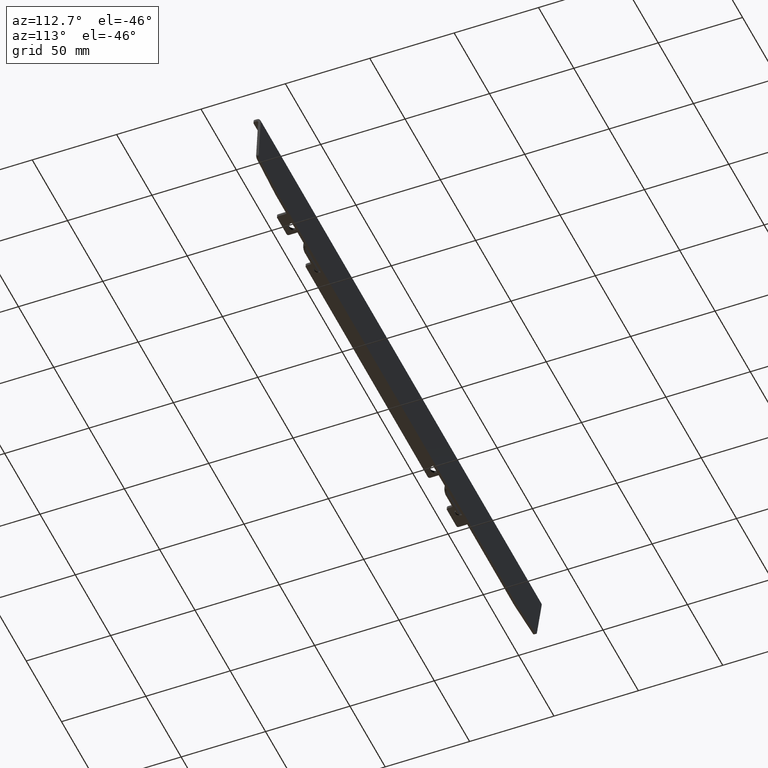
[diagram: clean part render]
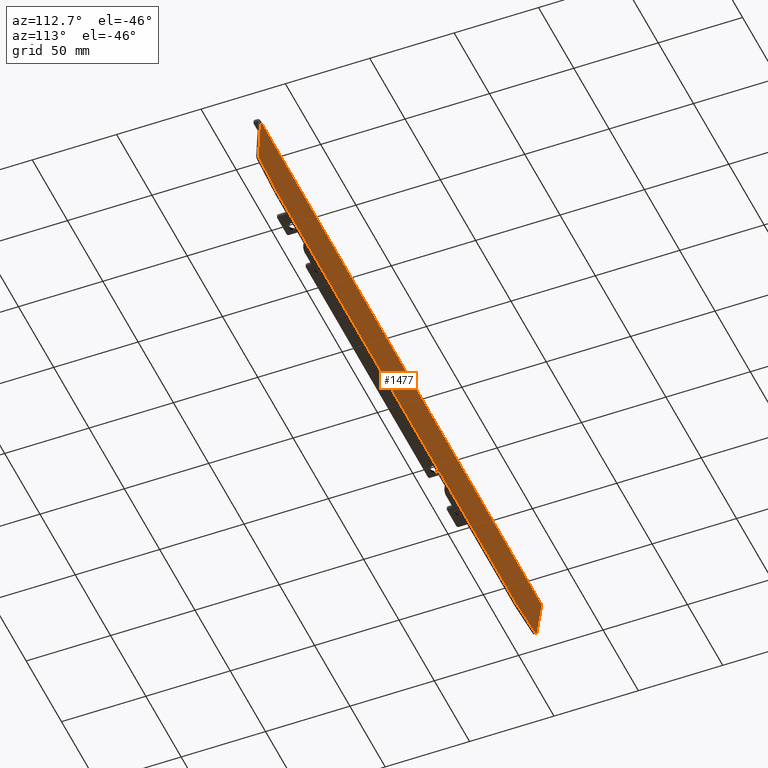
[diagram: same view with one face highlighted and labeled with its STEP entity id]
A machine part, auxiliary view. The second image highlights one B-rep face of the part: STEP entity #1477.
In plain terms, the highlighted planar face has unit normal (0, -0.9962, 0.0872).
Its self-contained STEP definition (entity closure, byte-faithful):
#20 = EDGE_CURVE ( 'NONE', #334, #1682, #816, .T. ) ;
#60 = CARTESIAN_POINT ( 'NONE',  ( 0.0000000000000000000, 14.19989399636805900, -1.146852625698959700 ) ) ;
#65 = CARTESIAN_POINT ( 'NONE',  ( 195.0776449257390900, 12.05539729358676500, -25.65856210158934300 ) ) ;
#81 = DIRECTION ( 'NONE',  ( -0.0000000000000000000, 0.9961946980917457700, -0.08715574274765484900 ) ) ;
#83 = CARTESIAN_POINT ( 'NONE',  ( 197.0700343219225500, 12.04020504659897400, -25.83221027925627300 ) ) ;
#151 = CARTESIAN_POINT ( 'NONE',  ( -3.792481612635670200, 10.42184392125012200, -44.33016258675002100 ) ) ;
#168 = VECTOR ( 'NONE', #2071, 1000.000000000000000 ) ;
#177 = EDGE_CURVE ( 'NONE', #843, #2389, #2250, .T. ) ;
#191 = ORIENTED_EDGE ( 'NONE', *, *, #2363, .T. ) ;
#226 = VERTEX_POINT ( 'NONE', #2243 ) ;
#262 = CARTESIAN_POINT ( 'NONE',  ( 169.0126781141830700, 11.85664828684728400, -27.93027364374357500 ) ) ;
#264 = EDGE_CURVE ( 'NONE', #2298, #671, #2130, .T. ) ;
#334 = VERTEX_POINT ( 'NONE', #1523 ) ;
#364 = ORIENTED_EDGE ( 'NONE', *, *, #1571, .T. ) ;
#372 = VECTOR ( 'NONE', #2027, 1000.000000000000200 ) ;
#409 = ORIENTED_EDGE ( 'NONE', *, *, #20, .T. ) ;
#416 = FACE_OUTER_BOUND ( 'NONE', #1247, .T. ) ;
#426 = DIRECTION ( 'NONE',  ( -0.0000000000000000000, 0.9961946980917457700, -0.08715574274765484900 ) ) ;
#430 = EDGE_CURVE ( 'NONE', #510, #1885, #1613, .T. ) ;
#481 = CARTESIAN_POINT ( 'NONE',  ( 169.1869895996784400, 11.68300010918036100, -29.91508139675577700 ) ) ;
#482 = DIRECTION ( 'NONE',  ( -1.000000000000000000, -0.0000000000000000000, -0.0000000000000000000 ) ) ;
#510 = VERTEX_POINT ( 'NONE', #1363 ) ;
#518 = VERTEX_POINT ( 'NONE', #1628 ) ;
#562 = DIRECTION ( 'NONE',  ( -0.0000000000000000000, 0.9961946980917457700, -0.08715574274765484900 ) ) ;
#602 = PLANE ( 'NONE',  #2025 ) ;
#640 = DIRECTION ( 'NONE',  ( 4.163336342344334500E-014, -0.08715574274765521000, -0.9961946980917457700 ) ) ;
#655 = DIRECTION ( 'NONE',  ( -0.0000000000000000000, 0.9961946980917457700, -0.08715574274765484900 ) ) ;
#656 = AXIS2_PLACEMENT_3D ( 'NONE', #65, #426, #2315 ) ;
#671 = VERTEX_POINT ( 'NONE', #1537 ) ;
#738 = CIRCLE ( 'NONE', #2007, 2.000000000000001300 ) ;
#809 = CARTESIAN_POINT ( 'NONE',  ( -169.0126781141831900, 11.68233680135197300, -29.92266303992706300 ) ) ;
#816 = LINE ( 'NONE', #1881, #168 ) ;
#817 = DIRECTION ( 'NONE',  ( 0.08715574274765833200, -0.08682408883346184900, -0.9924038765061041800 ) ) ;
#842 = CARTESIAN_POINT ( 'NONE',  ( -199.0999999999999900, 14.06244609240785000, -2.717889356869136900 ) ) ;
#843 = VERTEX_POINT ( 'NONE', #2017 ) ;
#863 = EDGE_CURVE ( 'NONE', #1682, #671, #1787, .T. ) ;
#954 = CARTESIAN_POINT ( 'NONE',  ( -195.2519564112343700, 11.88174911591983800, -27.64336985460155900 ) ) ;
#997 = ORIENTED_EDGE ( 'NONE', *, *, #1604, .F. ) ;
#1037 = ORIENTED_EDGE ( 'NONE', *, *, #430, .T. ) ;
#1050 = CIRCLE ( 'NONE', #656, 2.000000000000001300 ) ;
#1058 = LINE ( 'NONE', #842, #1560 ) ;
#1151 = DIRECTION ( 'NONE',  ( 0.0000000000000000000, -0.08715574274765486300, -0.9961946980917458800 ) ) ;
#1165 = ORIENTED_EDGE ( 'NONE', *, *, #177, .T. ) ;
#1209 = CARTESIAN_POINT ( 'NONE',  ( -195.0776449257390400, 12.05539729358676300, -25.65856210158935700 ) ) ;
#1247 = EDGE_LOOP ( 'NONE', ( #2060, #191, #997, #1489, #1165, #1698, #1037, #364, #409, #2213 ) ) ;
#1280 = CARTESIAN_POINT ( 'NONE',  ( 197.7245366855542800, 12.69221683113739400, -18.37968147996506500 ) ) ;
#1363 = CARTESIAN_POINT ( 'NONE',  ( 195.2519564112344000, 11.88174911591984200, -27.64336985460154800 ) ) ;
#1477 = ADVANCED_FACE ( 'NONE', ( #416 ), #602, .F. ) ;
#1489 = ORIENTED_EDGE ( 'NONE', *, *, #2420, .F. ) ;
#1523 = CARTESIAN_POINT ( 'NONE',  ( 169.0126781141830700, 11.68233680135197300, -29.92266303992706300 ) ) ;
#1537 = CARTESIAN_POINT ( 'NONE',  ( -169.1869895996785500, 11.68300010918035900, -29.91508139675577700 ) ) ;
#1550 = VECTOR ( 'NONE', #817, 1000.000000000000100 ) ;
#1560 = VECTOR ( 'NONE', #482, 1000.000000000000000 ) ;
#1571 = EDGE_CURVE ( 'NONE', #1885, #334, #1835, .T. ) ;
#1604 = EDGE_CURVE ( 'NONE', #226, #518, #1609, .T. ) ;
#1609 = LINE ( 'NONE', #2333, #1550 ) ;
#1613 = LINE ( 'NONE', #2114, #2176 ) ;
#1624 = AXIS2_PLACEMENT_3D ( 'NONE', #262, #81, #640 ) ;
#1628 = CARTESIAN_POINT ( 'NONE',  ( -197.0700343219225200, 12.04020504659897200, -25.83221027925629100 ) ) ;
#1645 = DIRECTION ( 'NONE',  ( 0.9961946980917455500, -0.007596123493895701000, -0.08682408883346542900 ) ) ;
#1664 = AXIS2_PLACEMENT_3D ( 'NONE', #2029, #562, #1828 ) ;
#1682 = VERTEX_POINT ( 'NONE', #809 ) ;
#1696 = EDGE_CURVE ( 'NONE', #2389, #510, #1050, .T. ) ;
#1698 = ORIENTED_EDGE ( 'NONE', *, *, #1696, .T. ) ;
#1724 = VECTOR ( 'NONE', #1645, 1000.000000000000100 ) ;
#1787 = CIRCLE ( 'NONE', #1664, 2.000000000000001300 ) ;
#1828 = DIRECTION ( 'NONE',  ( 0.0000000000000000000, -0.08715574274765521000, -0.9961946980917457700 ) ) ;
#1835 = CIRCLE ( 'NONE', #1624, 2.000000000000001300 ) ;
#1881 = CARTESIAN_POINT ( 'NONE',  ( 0.0000000000000000000, 11.68233680135197300, -29.92266303992706300 ) ) ;
#1885 = VERTEX_POINT ( 'NONE', #481 ) ;
#1904 = DIRECTION ( 'NONE',  ( 0.0000000000000000000, -0.9961946980917458800, 0.08715574274765486300 ) ) ;
#1962 = DIRECTION ( 'NONE',  ( 0.0000000000000000000, -0.08715574274765521000, -0.9961946980917457700 ) ) ;
#2007 = AXIS2_PLACEMENT_3D ( 'NONE', #1209, #655, #1962 ) ;
#2017 = CARTESIAN_POINT ( 'NONE',  ( 199.0999999999999900, 14.06244609240788500, -2.717889356869134200 ) ) ;
#2025 = AXIS2_PLACEMENT_3D ( 'NONE', #60, #1904, #1151 ) ;
#2027 = DIRECTION ( 'NONE',  ( -0.08715574274765831900, -0.08682408883346184900, -0.9924038765061041800 ) ) ;
#2029 = CARTESIAN_POINT ( 'NONE',  ( -169.0126781141831900, 11.85664828684728400, -27.93027364374357500 ) ) ;
#2060 = ORIENTED_EDGE ( 'NONE', *, *, #264, .F. ) ;
#2071 = DIRECTION ( 'NONE',  ( -1.000000000000000000, 0.0000000000000000000, 0.0000000000000000000 ) ) ;
#2114 = CARTESIAN_POINT ( 'NONE',  ( 3.792481612635670200, 10.42184392125012600, -44.33016258675001400 ) ) ;
#2130 = LINE ( 'NONE', #151, #1724 ) ;
#2176 = VECTOR ( 'NONE', #2306, 1000.000000000000000 ) ;
#2213 = ORIENTED_EDGE ( 'NONE', *, *, #863, .T. ) ;
#2243 = CARTESIAN_POINT ( 'NONE',  ( -199.1000000000001100, 14.06244609240784800, -2.717889356869136000 ) ) ;
#2250 = LINE ( 'NONE', #1280, #372 ) ;
#2298 = VERTEX_POINT ( 'NONE', #954 ) ;
#2306 = DIRECTION ( 'NONE',  ( -0.9961946980917455500, -0.007596123493895701900, -0.08682408883346544300 ) ) ;
#2315 = DIRECTION ( 'NONE',  ( 0.0000000000000000000, -0.08715574274765521000, -0.9961946980917457700 ) ) ;
#2333 = CARTESIAN_POINT ( 'NONE',  ( -197.7245366855542600, 12.69221683113739400, -18.37968147996506500 ) ) ;
#2363 = EDGE_CURVE ( 'NONE', #2298, #518, #738, .T. ) ;
#2389 = VERTEX_POINT ( 'NONE', #83 ) ;
#2420 = EDGE_CURVE ( 'NONE', #843, #226, #1058, .T. ) ;